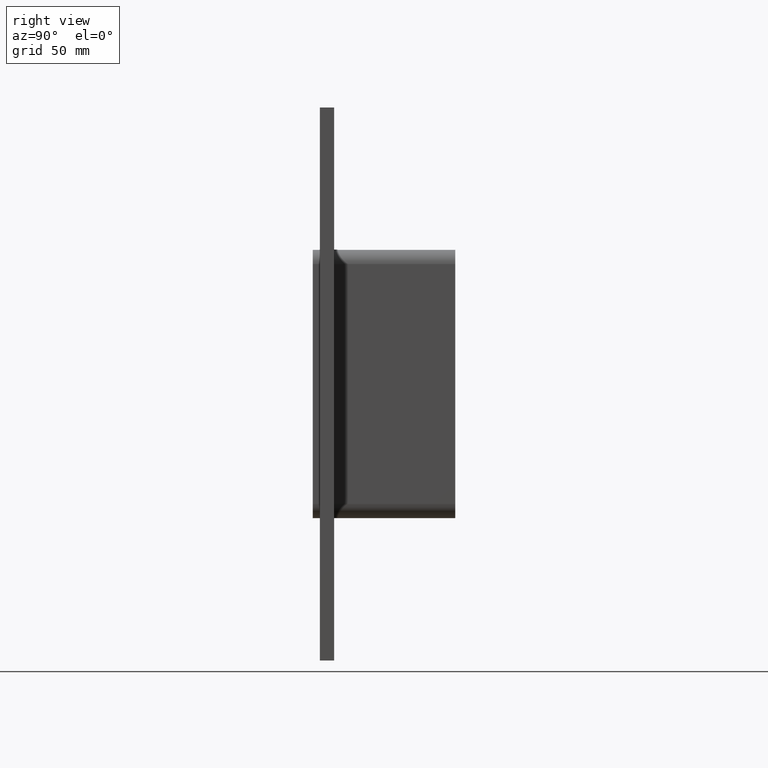
[diagram: clean part render]
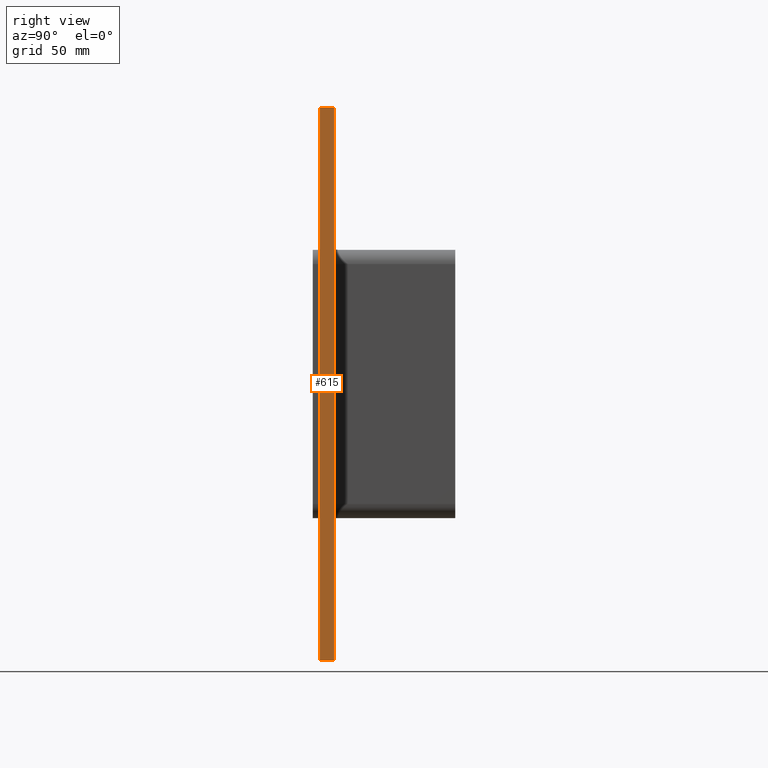
[diagram: same view with one face highlighted and labeled with its STEP entity id]
A machine part, right view. The second image highlights one B-rep face of the part: STEP entity #615.
In plain terms, the highlighted planar face has unit normal (1, 0, 0).
Its self-contained STEP definition (entity closure, byte-faithful):
#299=CARTESIAN_POINT('',(96.250000000000014,6.000000000000001,116.5));
#300=VERTEX_POINT('',#299);
#307=CARTESIAN_POINT('',(96.250000000000014,6.000000000000001,-116.50000000000004));
#308=VERTEX_POINT('',#307);
#309=CARTESIAN_POINT('',(96.25,6.000000000000001,116.5));
#310=DIRECTION('',(0.0,0.0,-1.0));
#311=VECTOR('',#310,233.00000000000006);
#312=LINE('',#309,#311);
#313=EDGE_CURVE('',#300,#308,#312,.T.);
#433=CARTESIAN_POINT('',(96.25,0.0,116.5));
#434=VERTEX_POINT('',#433);
#449=CARTESIAN_POINT('',(96.25,0.0,-116.50000000000003));
#450=VERTEX_POINT('',#449);
#457=CARTESIAN_POINT('',(96.25,0.0,116.5));
#458=DIRECTION('',(0.0,0.0,-1.0));
#459=VECTOR('',#458,233.00000000000006);
#460=LINE('',#457,#459);
#461=EDGE_CURVE('',#434,#450,#460,.T.);
#590=CARTESIAN_POINT('',(96.25,0.0,-116.50000000000003));
#591=DIRECTION('',(0.0,1.0,0.0));
#592=VECTOR('',#591,6.000000000000001);
#593=LINE('',#590,#592);
#594=EDGE_CURVE('',#450,#308,#593,.T.);
#599=CARTESIAN_POINT('',(96.25,0.0,116.5));
#600=DIRECTION('',(1.0,0.0,0.0));
#601=DIRECTION('',(0.0,0.0,-1.0));
#602=AXIS2_PLACEMENT_3D('',#599,#600,#601);
#603=PLANE('',#602);
#604=ORIENTED_EDGE('',*,*,#461,.T.);
#605=ORIENTED_EDGE('',*,*,#594,.T.);
#606=ORIENTED_EDGE('',*,*,#313,.F.);
#607=CARTESIAN_POINT('',(96.25,0.0,116.5));
#608=DIRECTION('',(0.0,1.0,0.0));
#609=VECTOR('',#608,6.000000000000001);
#610=LINE('',#607,#609);
#611=EDGE_CURVE('',#434,#300,#610,.T.);
#612=ORIENTED_EDGE('',*,*,#611,.F.);
#613=EDGE_LOOP('',(#604,#605,#606,#612));
#614=FACE_OUTER_BOUND('',#613,.T.);
#615=ADVANCED_FACE('',(#614),#603,.T.);